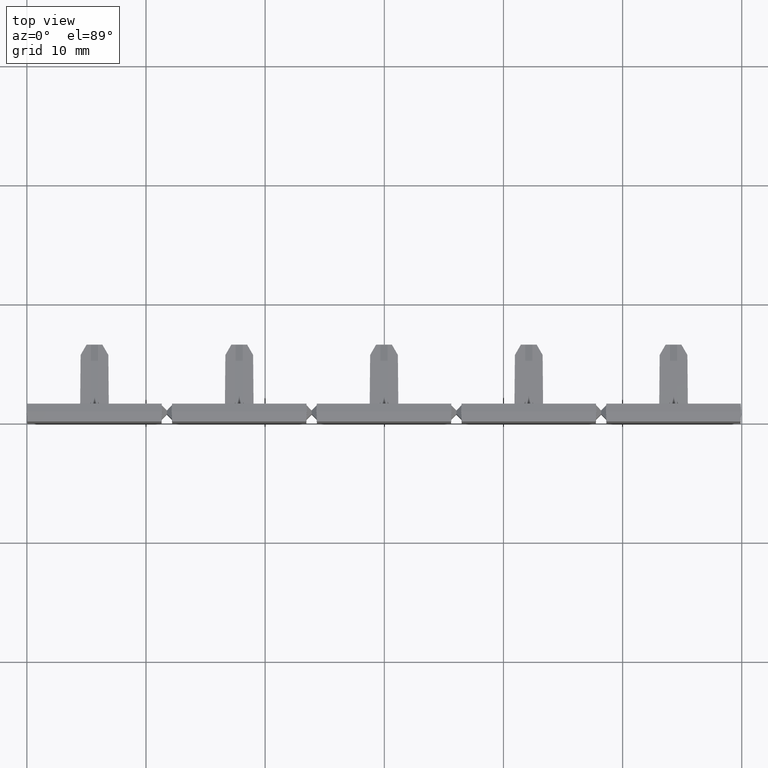
[diagram: clean part render]
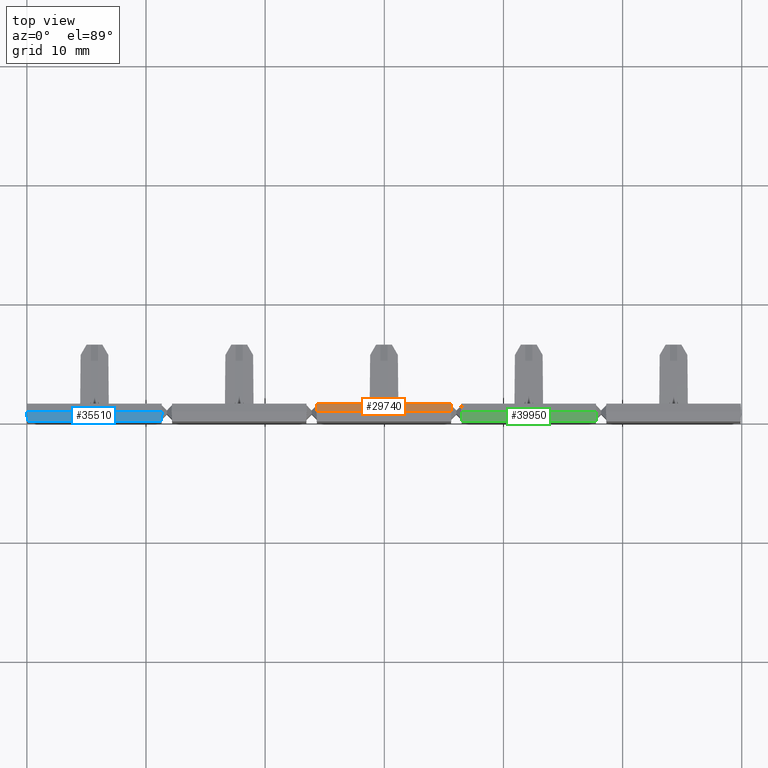
[diagram: same view with three faces highlighted in distinct colors, each labeled with its STEP entity id]
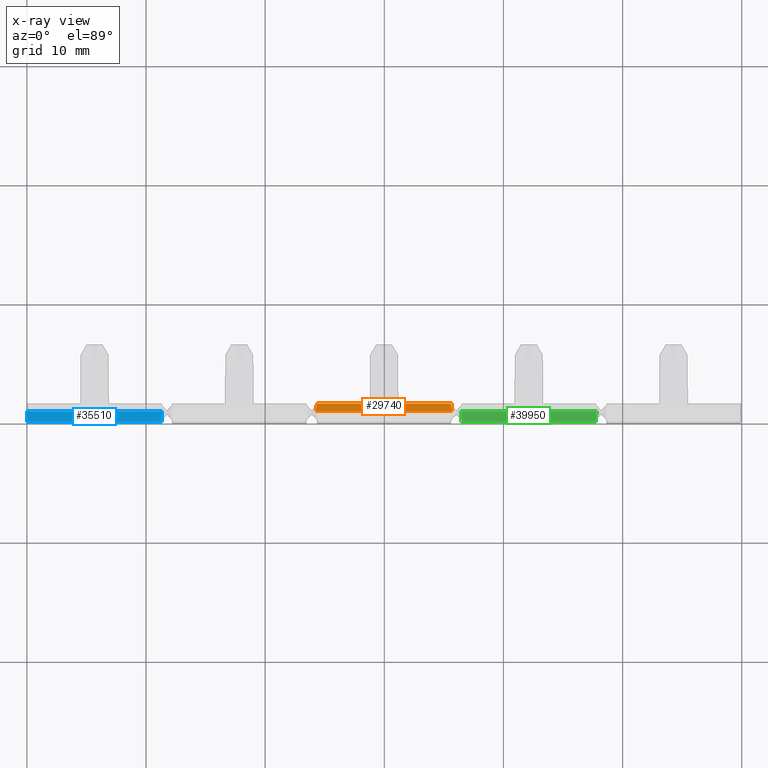
[diagram: x-ray of the same camera — body ghosted, the three highlighted faces saturated]
A machine part, top view with three faces highlighted in distinct colors.
The next image is the same camera in x-ray (body ghosted, the three faces saturated) — at least one of them is partly hidden behind the body in this view.
Their STEP definitions:

[orange] entity #29740 — the highlighted planar face has unit normal (0, -0.0523, -0.9986).
#7190=CARTESIAN_POINT('',(13.1511106772466,2.91950785562185,
21.0783747906746));
#7200=VERTEX_POINT('',#7190);
#7230=CARTESIAN_POINT('',(13.1511106773155,2.91950785563516,
53.6700000000526));
#7240=DIRECTION('',(-2.1134619990612E-12,-4.08396006638896E-13,-1.));
#7250=VECTOR('',#7240,1.);
#7260=LINE('',#7230,#7250);
#7270=CARTESIAN_POINT('',(13.1511106772705,2.91950785562646,
32.361625209376));
#7280=VERTEX_POINT('',#7270);
#7290=EDGE_CURVE('',#7280,#7200,#7260,.T.);
#24940=CARTESIAN_POINT('',(14.6735566650614,-26.1304921377481,
30.8391792215902));
#24950=DIRECTION('',(0.052264427687549,-0.997264688634369,
-0.0522644276873697));
#24960=VECTOR('',#24950,1.);
#24970=LINE('',#24940,#24960);
#24980=CARTESIAN_POINT('',(13.1177358661248,3.5563371890384,
32.3949999795302));
#24990=VERTEX_POINT('',#24980);
#25000=EDGE_CURVE('',#24990,#7280,#24970,.T.);
#29150=CARTESIAN_POINT('',(13.1177358661696,3.55633718904993,
53.6700000000523));
#29160=DIRECTION('',(2.11364818889554E-12,4.04843292960094E-13,1.));
#29170=VECTOR('',#29160,1.);
#29180=LINE('',#29150,#29170);
#29190=CARTESIAN_POINT('',(13.1177358661568,3.55633718796566,
21.045000020464));
#29200=VERTEX_POINT('',#29190);
#29210=EDGE_CURVE('',#29200,#24990,#29180,.T.);
#29580=CARTESIAN_POINT('',(13.1461441599685,3.01427465108573,
31.2800240225846));
#29590=DIRECTION('',(0.998629534754629,0.052335956241885,
-2.13193936837689E-12));
#29600=DIRECTION('',(-0.052335956241885,0.998629534754629,
-2.93668670172496E-13));
#29610=AXIS2_PLACEMENT_3D('',#29580,#29590,#29600);
#29620=PLANE('',#29610);
#29630=ORIENTED_EDGE('',*,*,#25000,.F.);
#29640=ORIENTED_EDGE('',*,*,#7290,.F.);
#29650=CARTESIAN_POINT('',(14.673556665044,-26.1304921377515,
22.6008207784776));
#29660=DIRECTION('',(-0.0522644276877699,0.997264688634326,
-0.0522644276879633));
#29670=VECTOR('',#29660,1.);
#29680=LINE('',#29650,#29670);
#29690=EDGE_CURVE('',#7200,#29200,#29680,.T.);
#29700=ORIENTED_EDGE('',*,*,#29690,.F.);
#29710=ORIENTED_EDGE('',*,*,#29210,.F.);
#29720=EDGE_LOOP('',(#29710,#29700,#29640,#29630));
#29730=FACE_OUTER_BOUND('',#29720,.T.);
#29740=ADVANCED_FACE('',(#29730),#29620,.F.);

[blue] entity #35510 — the highlighted planar face has unit normal (0, 0.0523, -0.9986).
#600=CARTESIAN_POINT('',(13.1629727238992,4.41950785552476,
56.6497631217514));
#610=VERTEX_POINT('',#600);
#640=CARTESIAN_POINT('',(13.1629727238929,4.41950785552354,
53.670000000052));
#650=DIRECTION('',(2.11383437872987E-12,4.08396006638896E-13,1.));
#660=VECTOR('',#650,1.);
#670=LINE('',#640,#660);
#680=CARTESIAN_POINT('',(13.1629727238754,4.41950785552016,
45.3902368782979));
#690=VERTEX_POINT('',#680);
#700=EDGE_CURVE('',#690,#610,#670,.T.);
#900=CARTESIAN_POINT('',(13.1177358661269,3.55633718905126,
56.6949999999717));
#910=VERTEX_POINT('',#900);
#1080=CARTESIAN_POINT('',(13.1177358661029,3.55633718904666,
45.3449999795843));
#1090=VERTEX_POINT('',#1080);
#1120=CARTESIAN_POINT('',(13.1177358661205,3.55633718905003,
53.6700000000523));
#1130=DIRECTION('',(2.11364818889554E-12,4.04843292960094E-13,1.));
#1140=VECTOR('',#1130,1.);
#1150=LINE('',#1120,#1140);
#1160=EDGE_CURVE('',#1090,#910,#1150,.T.);
#2570=CARTESIAN_POINT('',(11.5619150671198,-26.1304921377428,
43.789179221556));
#2580=DIRECTION('',(0.0522644276890959,0.997264688634231,
0.0522644276884606));
#2590=VECTOR('',#2580,1.);
#2600=LINE('',#2570,#2590);
#2610=EDGE_CURVE('',#1090,#690,#2600,.T.);
#35310=CARTESIAN_POINT('',(11.5619150671504,-26.1304921377369,
58.2508207785251));
#35320=DIRECTION('',(-0.052264427688875,-0.997264688634188,
0.0522644276894961));
#35330=VECTOR('',#35320,1.);
#35340=LINE('',#35310,#35330);
#35350=EDGE_CURVE('',#610,#910,#35340,.T.);
#35400=CARTESIAN_POINT('',(13.1177358661525,3.5563371895843,
55.5800240225844));
#35410=DIRECTION('',(0.99862953475456,-0.0523359562432165,
-2.08956364664585E-12));
#35420=DIRECTION('',(0.0523359562432165,0.99862953475456,
-5.14908268424835E-13));
#35430=AXIS2_PLACEMENT_3D('',#35400,#35410,#35420);
#35440=PLANE('',#35430);
#35450=ORIENTED_EDGE('',*,*,#2610,.F.);
#35460=ORIENTED_EDGE('',*,*,#700,.F.);
#35470=ORIENTED_EDGE('',*,*,#35350,.F.);
#35480=ORIENTED_EDGE('',*,*,#1160,.T.);
#35490=EDGE_LOOP('',(#35480,#35470,#35460,#35450));
#35500=FACE_OUTER_BOUND('',#35490,.T.);
#35510=ADVANCED_FACE('',(#35500),#35440,.F.);

[green] entity #39950 — the highlighted planar face has unit normal (0, 0.0523, -0.9986).
#38220=CARTESIAN_POINT('',(13.1629727239016,4.4195078556217,
20.1997631217514));
#38230=VERTEX_POINT('',#38220);
#38430=CARTESIAN_POINT('',(13.1177358661235,3.55633718903638,
20.2449999795859));
#38440=VERTEX_POINT('',#38430);
#38470=CARTESIAN_POINT('',(11.561915067147,-26.1304921377518,
21.8008207785251));
#38480=DIRECTION('',(-0.052264427688875,-0.997264688634188,
0.0522644276894961));
#38490=VECTOR('',#38480,1.);
#38500=LINE('',#38470,#38490);
#38510=EDGE_CURVE('',#38230,#38440,#38500,.T.);
#39650=CARTESIAN_POINT('',(13.1177358661491,3.55633718956942,
19.1300240225844));
#39660=DIRECTION('',(0.99862953475456,-0.0523359562432165,
-2.08956364664585E-12));
#39670=DIRECTION('',(0.0523359562432165,0.99862953475456,
-5.14908268424835E-13));
#39680=AXIS2_PLACEMENT_3D('',#39650,#39660,#39670);
#39690=PLANE('',#39680);
#39700=CARTESIAN_POINT('',(11.5619150671164,-26.1304921377577,
7.33917922155599));
#39710=DIRECTION('',(0.0522644276890959,0.997264688634231,
0.0522644276884606));
#39720=VECTOR('',#39710,1.);
#39730=LINE('',#39700,#39720);
#39740=CARTESIAN_POINT('',(13.1177358666419,3.55633679794795,
8.89500000002432));
#39750=VERTEX_POINT('',#39740);
#39760=CARTESIAN_POINT('',(13.1629727238778,4.41950785561711,
8.94023687829792));
#39770=VERTEX_POINT('',#39760);
#39780=EDGE_CURVE('',#39750,#39770,#39730,.T.);
#39790=ORIENTED_EDGE('',*,*,#39780,.F.);
#39800=CARTESIAN_POINT('',(13.1629727239724,4.41950785563538,
53.670000000052));
#39810=DIRECTION('',(2.11383437872987E-12,4.08396006638896E-13,1.));
#39820=VECTOR('',#39810,1.);
#39830=LINE('',#39800,#39820);
#39840=EDGE_CURVE('',#39770,#38230,#39830,.T.);
#39850=ORIENTED_EDGE('',*,*,#39840,.F.);
#39860=ORIENTED_EDGE('',*,*,#38510,.F.);
#39870=CARTESIAN_POINT('',(13.1177358661941,3.55633718904989,
53.6700000000523));
#39880=DIRECTION('',(2.11364818889554E-12,4.04843292960094E-13,1.));
#39890=VECTOR('',#39880,1.);
#39900=LINE('',#39870,#39890);
#39910=EDGE_CURVE('',#39750,#38440,#39900,.T.);
#39920=ORIENTED_EDGE('',*,*,#39910,.T.);
#39930=EDGE_LOOP('',(#39920,#39860,#39850,#39790));
#39940=FACE_OUTER_BOUND('',#39930,.T.);
#39950=ADVANCED_FACE('',(#39940),#39690,.F.);